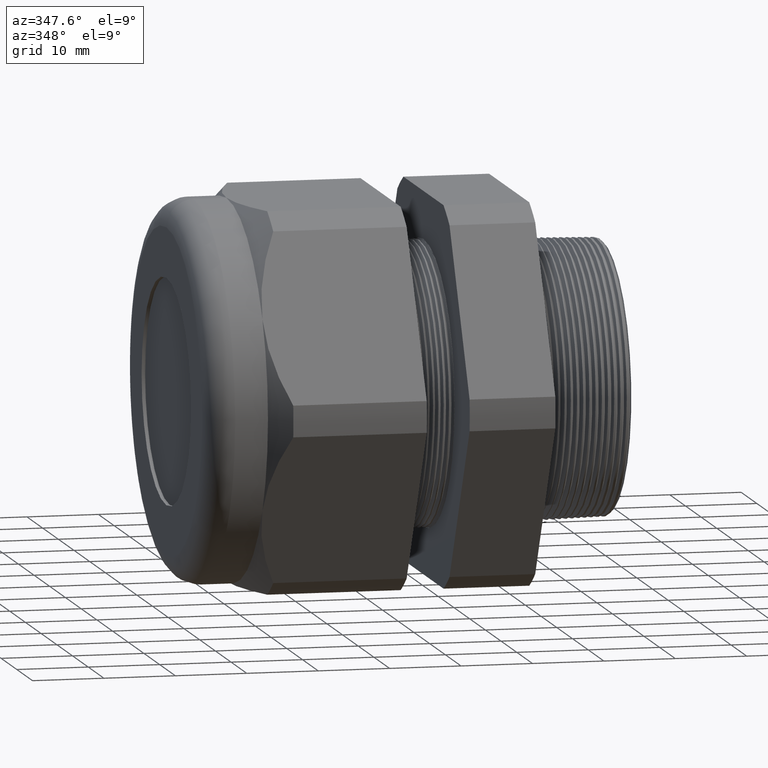
[diagram: clean part render]
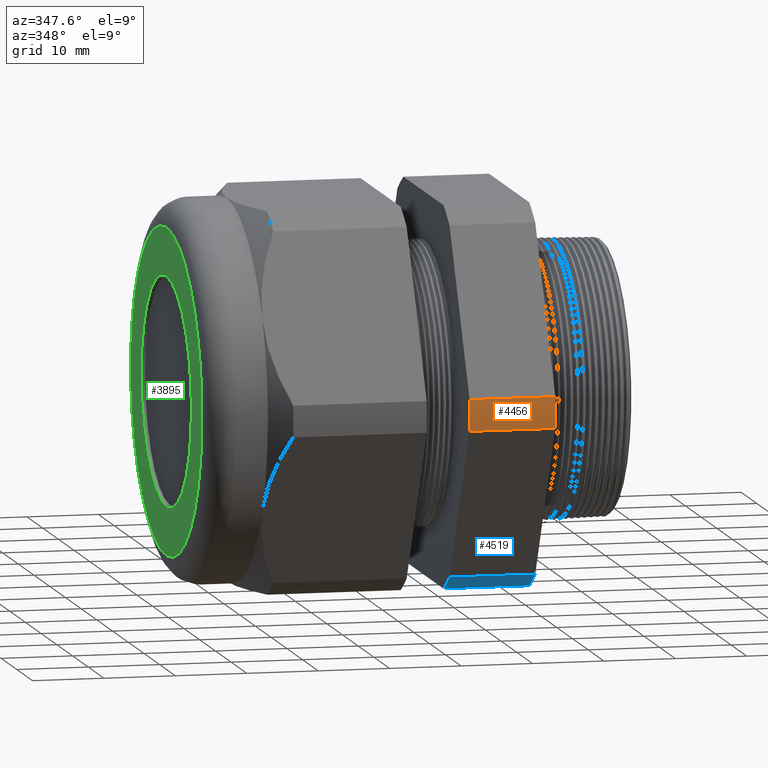
[diagram: same view with three faces highlighted in distinct colors, each labeled with its STEP entity id]
A machine part, auxiliary view with three faces highlighted in distinct colors.
Their STEP definitions:

[orange] entity #4456 — the highlighted cylindrical surface (partial cylindrical patch) has radius 29.4627 mm, axis along (-1, 0, 0).
#99 = EDGE_CURVE ( 'NONE', #4024, #173, #645, .T. ) ;
#173 = VERTEX_POINT ( 'NONE', #776 ) ;
#179 = EDGE_CURVE ( 'NONE', #190, #173, #768, .T. ) ;
#190 = VERTEX_POINT ( 'NONE', #804 ) ;
#642 = DIRECTION ( 'NONE',  ( -1.000000000000000000, 0.0000000000000000000, 0.0000000000000000000 ) ) ;
#643 = VECTOR ( 'NONE', #642, 39.37007874015748100 ) ;
#644 = CARTESIAN_POINT ( 'NONE',  ( 0.2000000000000000400, -1.156720106887058100, 0.08650200473511256100 ) ) ;
#645 = LINE ( 'NONE', #644, #643 ) ;
#764 = DIRECTION ( 'NONE',  ( 0.0000000000000000000, 0.0000000000000000000, 1.000000000000000000 ) ) ;
#765 = DIRECTION ( 'NONE',  ( -1.000000000000000000, 0.0000000000000000000, 0.0000000000000000000 ) ) ;
#766 = CARTESIAN_POINT ( 'NONE',  ( -0.7824399999999999100, 0.0000000000000000000, 0.0000000000000000000 ) ) ;
#767 = AXIS2_PLACEMENT_3D ( 'NONE', #766, #765, #764 ) ;
#768 = CIRCLE ( 'NONE', #767, 1.159950000000000000 ) ;
#776 = CARTESIAN_POINT ( 'NONE',  ( -0.7824399999999999100, -1.156720106887058100, 0.08650200473511256100 ) ) ;
#804 = CARTESIAN_POINT ( 'NONE',  ( -0.7824399999999999100, -1.156720106887057800, -0.08650200473511310300 ) ) ;
#1807 = CARTESIAN_POINT ( 'NONE',  ( -0.3100000000000000000, -1.156720106887057800, -0.08650200473511310300 ) ) ;
#1871 = CARTESIAN_POINT ( 'NONE',  ( -0.3100000000000000000, -1.156720106887058100, 0.08650200473511256100 ) ) ;
#1882 = DIRECTION ( 'NONE',  ( 0.0000000000000000000, 0.0000000000000000000, -1.000000000000000000 ) ) ;
#1883 = DIRECTION ( 'NONE',  ( 1.000000000000000000, 0.0000000000000000000, 0.0000000000000000000 ) ) ;
#1884 = CARTESIAN_POINT ( 'NONE',  ( -0.3100000000000000000, 0.0000000000000000000, 0.0000000000000000000 ) ) ;
#1885 = AXIS2_PLACEMENT_3D ( 'NONE', #1884, #1883, #1882 ) ;
#1886 = CIRCLE ( 'NONE', #1885, 1.159950000000000000 ) ;
#2443 = DIRECTION ( 'NONE',  ( -1.000000000000000000, 0.0000000000000000000, 0.0000000000000000000 ) ) ;
#2444 = VECTOR ( 'NONE', #2443, 39.37007874015748100 ) ;
#2445 = CARTESIAN_POINT ( 'NONE',  ( 0.2000000000000000400, -1.156720106887057800, -0.08650200473511310300 ) ) ;
#2446 = LINE ( 'NONE', #2445, #2444 ) ;
#2627 = DIRECTION ( 'NONE',  ( 0.0000000000000000000, 0.0000000000000000000, 1.000000000000000000 ) ) ;
#2628 = DIRECTION ( 'NONE',  ( -1.000000000000000000, 0.0000000000000000000, 0.0000000000000000000 ) ) ;
#2629 = CARTESIAN_POINT ( 'NONE',  ( 0.2000000000000000400, 0.0000000000000000000, 0.0000000000000000000 ) ) ;
#2630 = AXIS2_PLACEMENT_3D ( 'NONE', #2629, #2628, #2627 ) ;
#2632 = CYLINDRICAL_SURFACE ( 'NONE', #2630, 1.159950000000000000 ) ;
#2633 = FACE_OUTER_BOUND ( 'NONE', #4435, .T. ) ;
#3992 = VERTEX_POINT ( 'NONE', #1807 ) ;
#4015 = EDGE_CURVE ( 'NONE', #4024, #3992, #1886, .T. ) ;
#4024 = VERTEX_POINT ( 'NONE', #1871 ) ;
#4353 = EDGE_CURVE ( 'NONE', #3992, #190, #2446, .T. ) ;
#4354 = ORIENTED_EDGE ( 'NONE', *, *, #4015, .F. ) ;
#4381 = ORIENTED_EDGE ( 'NONE', *, *, #4353, .F. ) ;
#4410 = ORIENTED_EDGE ( 'NONE', *, *, #179, .F. ) ;
#4426 = ORIENTED_EDGE ( 'NONE', *, *, #99, .T. ) ;
#4435 = EDGE_LOOP ( 'NONE', ( #4426, #4410, #4381, #4354 ) ) ;
#4456 = ADVANCED_FACE ( 'NONE', ( #2633 ), #2632, .T. ) ;

[blue] entity #4519 — the highlighted cylindrical surface (partial cylindrical patch) has radius 29.4627 mm, axis along (-1, 0, 0).
#79 = CIRCLE ( 'NONE', #86, 1.159950000000000000 ) ;
#86 = AXIS2_PLACEMENT_3D ( 'NONE', #88, #87, #95 ) ;
#87 = DIRECTION ( 'NONE',  ( -1.000000000000000000, 0.0000000000000000000, 0.0000000000000000000 ) ) ;
#88 = CARTESIAN_POINT ( 'NONE',  ( -0.7824399999999999100, 0.0000000000000000000, 0.0000000000000000000 ) ) ;
#95 = DIRECTION ( 'NONE',  ( 0.0000000000000000000, 0.0000000000000000000, 1.000000000000000000 ) ) ;
#134 = VERTEX_POINT ( 'NONE', #701 ) ;
#136 = VERTEX_POINT ( 'NONE', #700 ) ;
#137 = EDGE_CURVE ( 'NONE', #136, #134, #79, .T. ) ;
#698 = DIRECTION ( 'NONE',  ( -1.000000000000000000, 0.0000000000000000000, 0.0000000000000000000 ) ) ;
#700 = CARTESIAN_POINT ( 'NONE',  ( -0.7824399999999999100, -0.5034471198646389700, -1.044999999999999900 ) ) ;
#701 = CARTESIAN_POINT ( 'NONE',  ( -0.7824399999999999100, -0.6532729870224180900, -0.9584979952648871000 ) ) ;
#1203 = CARTESIAN_POINT ( 'NONE',  ( 0.2000000000000000400, -0.6532729870224180900, -0.9584979952648871000 ) ) ;
#1204 = LINE ( 'NONE', #1203, #1710 ) ;
#1530 = CARTESIAN_POINT ( 'NONE',  ( -0.3100000000000000000, -0.5034471198646389700, -1.044999999999999900 ) ) ;
#1547 = DIRECTION ( 'NONE',  ( 1.000000000000000000, 0.0000000000000000000, 0.0000000000000000000 ) ) ;
#1548 = CARTESIAN_POINT ( 'NONE',  ( -0.3100000000000000000, 0.0000000000000000000, 0.0000000000000000000 ) ) ;
#1549 = AXIS2_PLACEMENT_3D ( 'NONE', #1548, #1547, #1608 ) ;
#1550 = CIRCLE ( 'NONE', #1549, 1.159950000000000000 ) ;
#1601 = CARTESIAN_POINT ( 'NONE',  ( -0.3100000000000000000, -0.6532729870224180900, -0.9584979952648871000 ) ) ;
#1608 = DIRECTION ( 'NONE',  ( 0.0000000000000000000, 0.0000000000000000000, -1.000000000000000000 ) ) ;
#1710 = VECTOR ( 'NONE', #698, 39.37007874015748100 ) ;
#2769 = DIRECTION ( 'NONE',  ( 0.0000000000000000000, 0.0000000000000000000, 1.000000000000000000 ) ) ;
#2770 = DIRECTION ( 'NONE',  ( -1.000000000000000000, 0.0000000000000000000, 0.0000000000000000000 ) ) ;
#2771 = CARTESIAN_POINT ( 'NONE',  ( 0.2000000000000000400, 0.0000000000000000000, 0.0000000000000000000 ) ) ;
#2772 = AXIS2_PLACEMENT_3D ( 'NONE', #2771, #2770, #2769 ) ;
#2773 = CYLINDRICAL_SURFACE ( 'NONE', #2772, 1.159950000000000000 ) ;
#2775 = FACE_OUTER_BOUND ( 'NONE', #4511, .T. ) ;
#2780 = DIRECTION ( 'NONE',  ( -1.000000000000000000, 0.0000000000000000000, 0.0000000000000000000 ) ) ;
#2781 = VECTOR ( 'NONE', #2780, 39.37007874015748100 ) ;
#2782 = CARTESIAN_POINT ( 'NONE',  ( 0.2000000000000000400, -0.5034471198646389700, -1.044999999999999900 ) ) ;
#2783 = LINE ( 'NONE', #2782, #2781 ) ;
#3836 = VERTEX_POINT ( 'NONE', #1530 ) ;
#3863 = EDGE_CURVE ( 'NONE', #3868, #3836, #1550, .T. ) ;
#3868 = VERTEX_POINT ( 'NONE', #1601 ) ;
#4503 = ORIENTED_EDGE ( 'NONE', *, *, #137, .F. ) ;
#4507 = ORIENTED_EDGE ( 'NONE', *, *, #4515, .T. ) ;
#4511 = EDGE_LOOP ( 'NONE', ( #4507, #4503, #4523, #4522 ) ) ;
#4515 = EDGE_CURVE ( 'NONE', #3868, #134, #1204, .T. ) ;
#4516 = EDGE_CURVE ( 'NONE', #3836, #136, #2783, .T. ) ;
#4519 = ADVANCED_FACE ( 'NONE', ( #2775 ), #2773, .T. ) ;
#4522 = ORIENTED_EDGE ( 'NONE', *, *, #3863, .F. ) ;
#4523 = ORIENTED_EDGE ( 'NONE', *, *, #4516, .F. ) ;

[green] entity #3895 — the highlighted planar face has unit normal (-1, 0, 0).
#1579 = CIRCLE ( 'NONE', #1638, 0.6300000000000000000 ) ;
#1614 = DIRECTION ( 'NONE',  ( 0.0000000000000000000, 0.0000000000000000000, 1.000000000000000000 ) ) ;
#1615 = DIRECTION ( 'NONE',  ( -1.000000000000000000, 0.0000000000000000000, 0.0000000000000000000 ) ) ;
#1616 = CARTESIAN_POINT ( 'NONE',  ( -2.200000000000000200, 1.044999999999999900, 0.0000000000000000000 ) ) ;
#1617 = AXIS2_PLACEMENT_3D ( 'NONE', #1616, #1615, #1614 ) ;
#1618 = PLANE ( 'NONE',  #1617 ) ;
#1619 = FACE_BOUND ( 'NONE', #3880, .T. ) ;
#1620 = FACE_OUTER_BOUND ( 'NONE', #3900, .T. ) ;
#1631 = DIRECTION ( 'NONE',  ( 0.0000000000000000000, 0.0000000000000000000, 1.000000000000000000 ) ) ;
#1632 = DIRECTION ( 'NONE',  ( -1.000000000000000000, 0.0000000000000000000, 0.0000000000000000000 ) ) ;
#1633 = AXIS2_PLACEMENT_3D ( 'NONE', #1639, #1632, #1631 ) ;
#1634 = CIRCLE ( 'NONE', #1633, 0.8949999999999999100 ) ;
#1635 = DIRECTION ( 'NONE',  ( 0.0000000000000000000, 0.0000000000000000000, -1.000000000000000000 ) ) ;
#1636 = DIRECTION ( 'NONE',  ( 1.000000000000000000, 0.0000000000000000000, 0.0000000000000000000 ) ) ;
#1637 = CARTESIAN_POINT ( 'NONE',  ( -2.200000000000000200, 0.0000000000000000000, 0.0000000000000000000 ) ) ;
#1638 = AXIS2_PLACEMENT_3D ( 'NONE', #1637, #1636, #1635 ) ;
#1639 = CARTESIAN_POINT ( 'NONE',  ( -2.200000000000000200, 0.0000000000000000000, 0.0000000000000000000 ) ) ;
#2220 = CARTESIAN_POINT ( 'NONE',  ( -2.200000000000000200, 0.0000000000000000000, -0.6300000000000000000 ) ) ;
#2247 = DIRECTION ( 'NONE',  ( 0.0000000000000000000, 0.0000000000000000000, -1.000000000000000000 ) ) ;
#2248 = DIRECTION ( 'NONE',  ( 1.000000000000000000, 0.0000000000000000000, 0.0000000000000000000 ) ) ;
#2249 = AXIS2_PLACEMENT_3D ( 'NONE', #2256, #2248, #2247 ) ;
#2250 = CIRCLE ( 'NONE', #2249, 0.6300000000000000000 ) ;
#2256 = CARTESIAN_POINT ( 'NONE',  ( -2.200000000000000200, 0.0000000000000000000, 0.0000000000000000000 ) ) ;
#2266 = CARTESIAN_POINT ( 'NONE',  ( -2.200000000000000200, 7.715274834628325400E-017, 0.6300000000000000000 ) ) ;
#2467 = DIRECTION ( 'NONE',  ( 0.0000000000000000000, 0.0000000000000000000, 1.000000000000000000 ) ) ;
#2468 = DIRECTION ( 'NONE',  ( -1.000000000000000000, 0.0000000000000000000, 0.0000000000000000000 ) ) ;
#2469 = AXIS2_PLACEMENT_3D ( 'NONE', #2477, #2468, #2467 ) ;
#2470 = CIRCLE ( 'NONE', #2469, 0.8949999999999999100 ) ;
#2477 = CARTESIAN_POINT ( 'NONE',  ( -2.200000000000000200, 0.0000000000000000000, 0.0000000000000000000 ) ) ;
#2478 = CARTESIAN_POINT ( 'NONE',  ( -2.200000000000000200, 1.187907395172932400E-016, -0.8949999999999999100 ) ) ;
#2479 = CARTESIAN_POINT ( 'NONE',  ( -2.200000000000000200, 0.0000000000000000000, 0.8949999999999999100 ) ) ;
#3880 = EDGE_LOOP ( 'NONE', ( #3882, #4664 ) ) ;
#3881 = EDGE_CURVE ( 'NONE', #4235, #4240, #1579, .T. ) ;
#3882 = ORIENTED_EDGE ( 'NONE', *, *, #3881, .T. ) ;
#3883 = EDGE_CURVE ( 'NONE', #4374, #4371, #1634, .T. ) ;
#3895 = ADVANCED_FACE ( 'NONE', ( #1620, #1619 ), #1618, .T. ) ;
#3898 = ORIENTED_EDGE ( 'NONE', *, *, #4378, .T. ) ;
#3900 = EDGE_LOOP ( 'NONE', ( #3898, #3902 ) ) ;
#3902 = ORIENTED_EDGE ( 'NONE', *, *, #3883, .T. ) ;
#4235 = VERTEX_POINT ( 'NONE', #2220 ) ;
#4240 = VERTEX_POINT ( 'NONE', #2266 ) ;
#4254 = EDGE_CURVE ( 'NONE', #4240, #4235, #2250, .T. ) ;
#4371 = VERTEX_POINT ( 'NONE', #2479 ) ;
#4374 = VERTEX_POINT ( 'NONE', #2478 ) ;
#4378 = EDGE_CURVE ( 'NONE', #4371, #4374, #2470, .T. ) ;
#4664 = ORIENTED_EDGE ( 'NONE', *, *, #4254, .T. ) ;